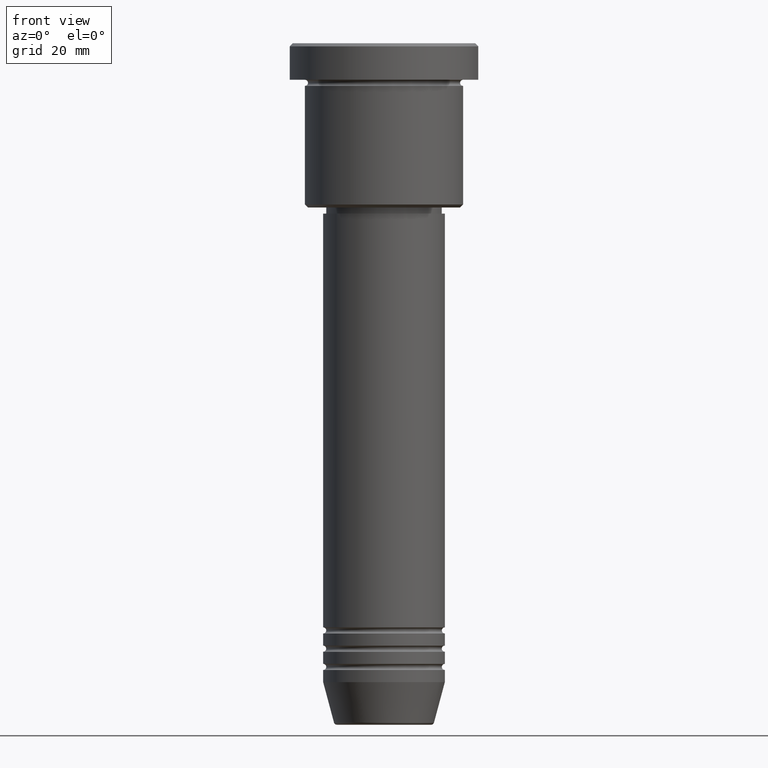
[diagram: clean part render]
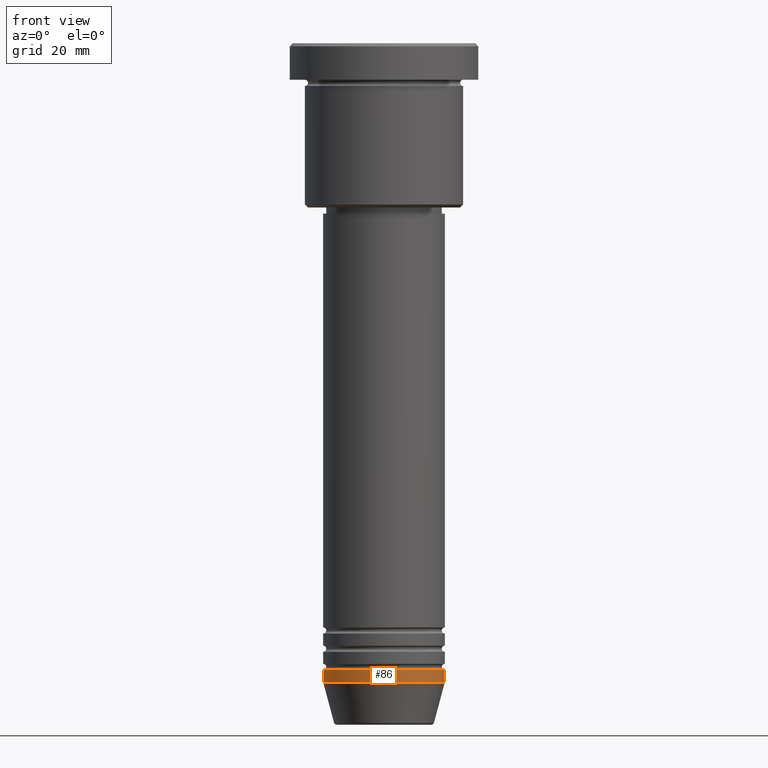
[diagram: same view with one face highlighted and labeled with its STEP entity id]
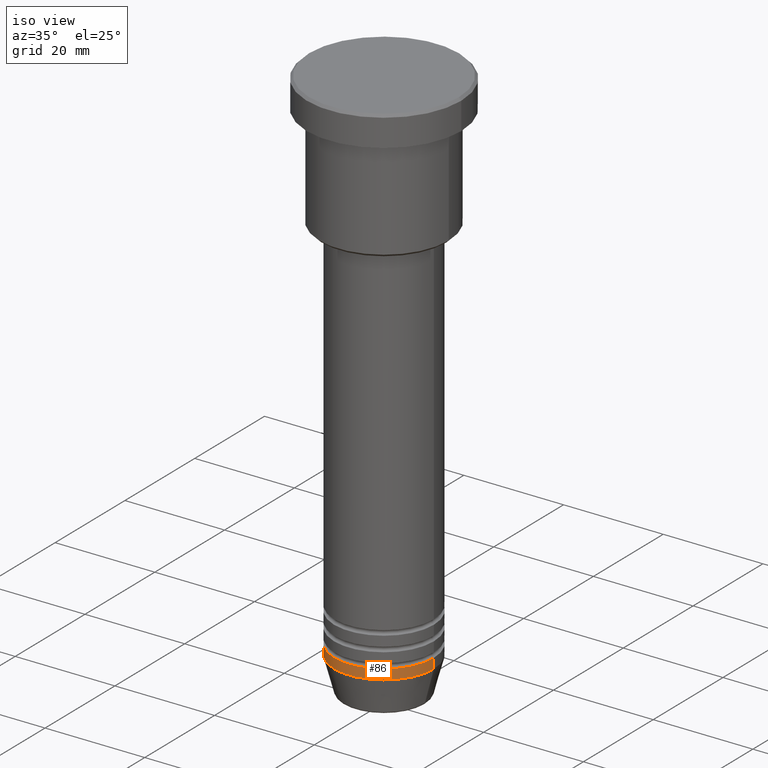
[diagram: same view with one face highlighted and labeled with its STEP entity id]
A machine part, front view. The second image highlights one B-rep face of the part: STEP entity #86.
A second angle (iso view) of the same face is appended — the face is thin or edge-on in the first view.
In plain terms, the highlighted cylindrical surface (partial cylindrical patch) has radius 10 mm, axis along (-0, -0, 1).
Its self-contained STEP definition (entity closure, byte-faithful):
#9 = DIRECTION ( 'NONE',  ( -0.000000000000000000, -0.000000000000000000, 1.000000000000000000 ) ) ;
#40 = DIRECTION ( 'NONE',  ( -0.000000000000000000, -0.000000000000000000, 1.000000000000000000 ) ) ;
#47 = ORIENTED_EDGE ( 'NONE', *, *, #1139, .T. ) ;
#48 = VERTEX_POINT ( 'NONE', #355 ) ;
#59 = DIRECTION ( 'NONE',  ( -0.000000000000000000, -0.000000000000000000, 1.000000000000000000 ) ) ;
#86 = ADVANCED_FACE ( 'NONE', ( #135 ), #835, .T. ) ;
#111 = ORIENTED_EDGE ( 'NONE', *, *, #592, .F. ) ;
#135 = FACE_OUTER_BOUND ( 'NONE', #1167, .T. ) ;
#154 = AXIS2_PLACEMENT_3D ( 'NONE', #280, #1035, #849 ) ;
#194 = CARTESIAN_POINT ( 'NONE',  ( 10.00000000000000000, 0.000000000000000000, -103.0000000000000142 ) ) ;
#212 = VERTEX_POINT ( 'NONE', #483 ) ;
#219 = AXIS2_PLACEMENT_3D ( 'NONE', #1136, #1026, #395 ) ;
#226 = CARTESIAN_POINT ( 'NONE',  ( 0.000000000000000000, 0.000000000000000000, -105.0000000000000142 ) ) ;
#280 = CARTESIAN_POINT ( 'NONE',  ( 0.000000000000000000, 0.000000000000000000, 0.000000000000000000 ) ) ;
#282 = LINE ( 'NONE', #646, #1164 ) ;
#355 = CARTESIAN_POINT ( 'NONE',  ( -10.00000000000000000, 1.224646799147353256E-15, -103.0000000000000142 ) ) ;
#395 = DIRECTION ( 'NONE',  ( 1.000000000000000000, 0.000000000000000000, 0.000000000000000000 ) ) ;
#404 = CIRCLE ( 'NONE', #1174, 10.00000000000000000 ) ;
#483 = CARTESIAN_POINT ( 'NONE',  ( 10.00000000000000000, 0.000000000000000000, -105.0000000000000142 ) ) ;
#505 = EDGE_CURVE ( 'NONE', #998, #212, #404, .T. ) ;
#506 = DIRECTION ( 'NONE',  ( 1.000000000000000000, 0.000000000000000000, 0.000000000000000000 ) ) ;
#510 = VECTOR ( 'NONE', #9, 1000.000000000000000 ) ;
#530 = CARTESIAN_POINT ( 'NONE',  ( 10.00000000000000000, 0.000000000000000000, 0.000000000000000000 ) ) ;
#578 = ORIENTED_EDGE ( 'NONE', *, *, #930, .F. ) ;
#592 = EDGE_CURVE ( 'NONE', #48, #599, #1040, .T. ) ;
#599 = VERTEX_POINT ( 'NONE', #194 ) ;
#639 = ORIENTED_EDGE ( 'NONE', *, *, #505, .T. ) ;
#646 = CARTESIAN_POINT ( 'NONE',  ( -10.00000000000000000, 1.224646799147353256E-15, 0.000000000000000000 ) ) ;
#835 = CYLINDRICAL_SURFACE ( 'NONE', #154, 10.00000000000000000 ) ;
#849 = DIRECTION ( 'NONE',  ( 1.000000000000000000, 0.000000000000000000, 0.000000000000000000 ) ) ;
#863 = CARTESIAN_POINT ( 'NONE',  ( -10.00000000000000000, 1.224646799147353256E-15, -105.0000000000000142 ) ) ;
#930 = EDGE_CURVE ( 'NONE', #998, #48, #282, .T. ) ;
#998 = VERTEX_POINT ( 'NONE', #863 ) ;
#1026 = DIRECTION ( 'NONE',  ( -0.000000000000000000, -0.000000000000000000, 1.000000000000000000 ) ) ;
#1035 = DIRECTION ( 'NONE',  ( -0.000000000000000000, -0.000000000000000000, 1.000000000000000000 ) ) ;
#1040 = CIRCLE ( 'NONE', #219, 10.00000000000000000 ) ;
#1063 = LINE ( 'NONE', #530, #510 ) ;
#1136 = CARTESIAN_POINT ( 'NONE',  ( 0.000000000000000000, 0.000000000000000000, -103.0000000000000142 ) ) ;
#1139 = EDGE_CURVE ( 'NONE', #212, #599, #1063, .T. ) ;
#1164 = VECTOR ( 'NONE', #40, 1000.000000000000000 ) ;
#1167 = EDGE_LOOP ( 'NONE', ( #578, #639, #47, #111 ) ) ;
#1174 = AXIS2_PLACEMENT_3D ( 'NONE', #226, #59, #506 ) ;